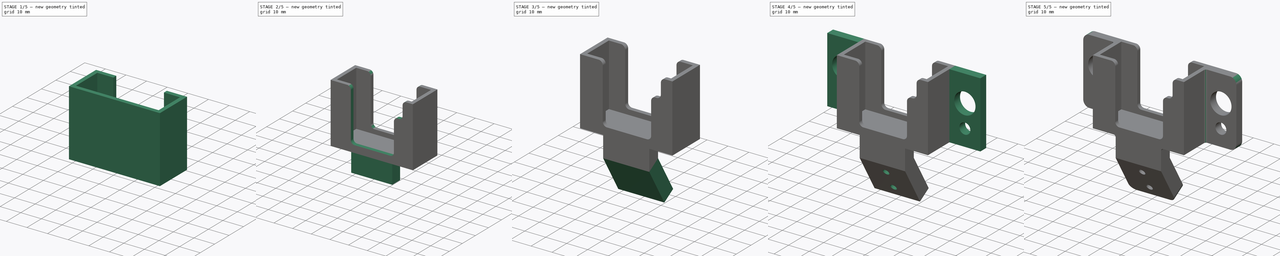
[diagram: build sequence overview — one tinted view per stage of 5, left to right]
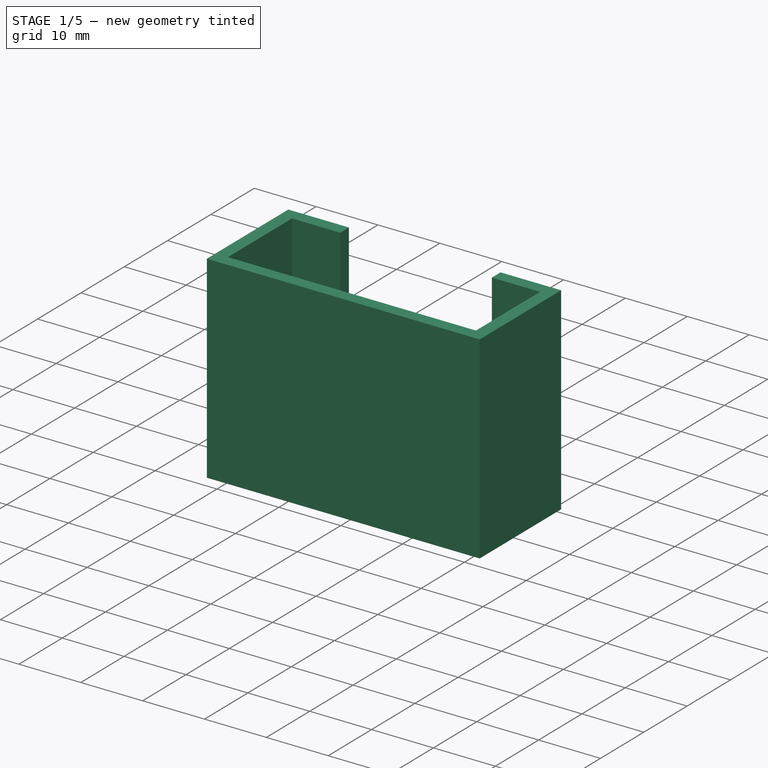
[diagram: stage 1 of 5 — iso view after this stage's code; geometry added in this stage tinted green]
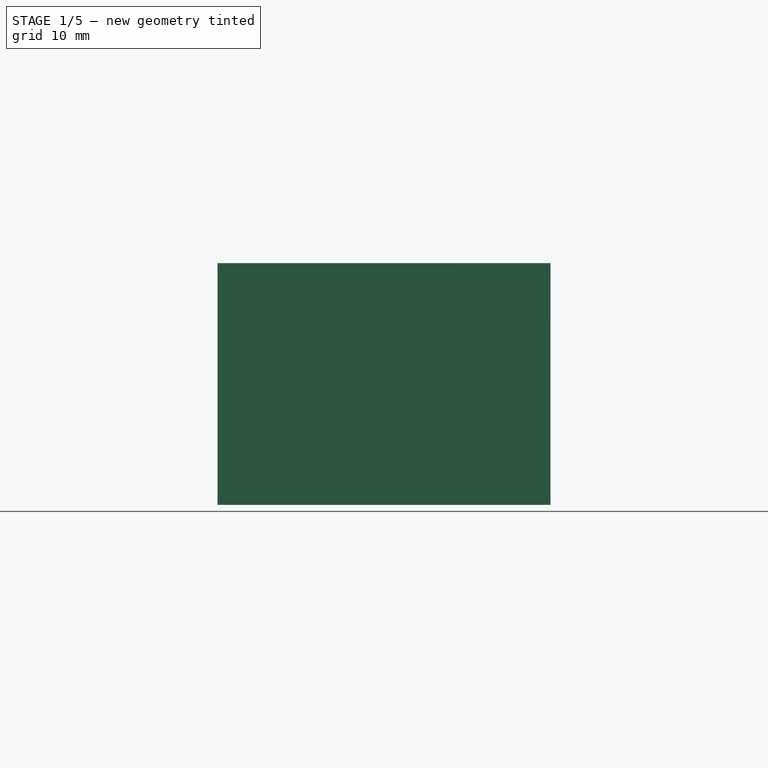
[diagram: stage 1 of 5 — front view after this stage's code; geometry added in this stage tinted green]
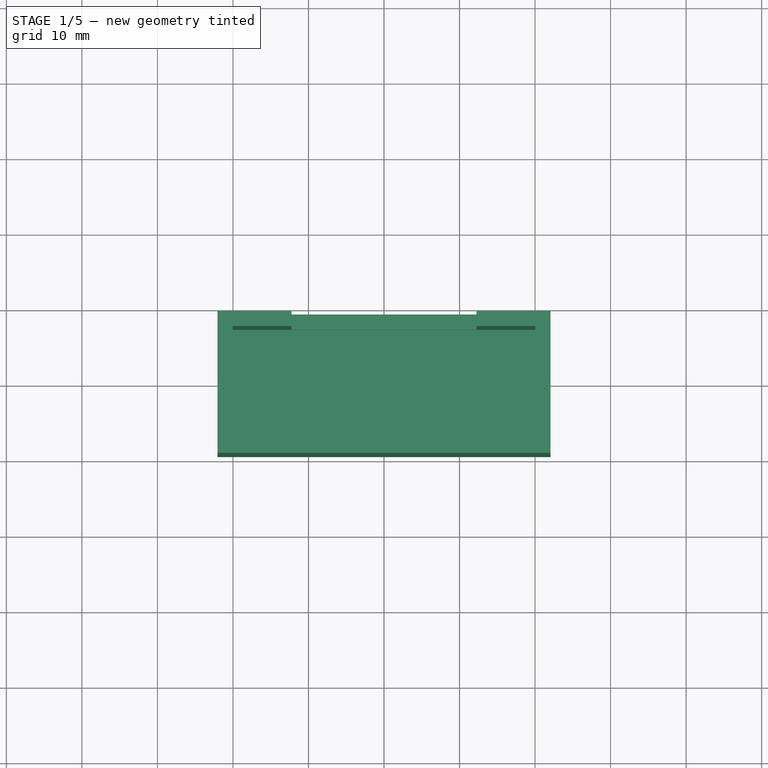
[diagram: stage 1 of 5 — top view after this stage's code; geometry added in this stage tinted green]
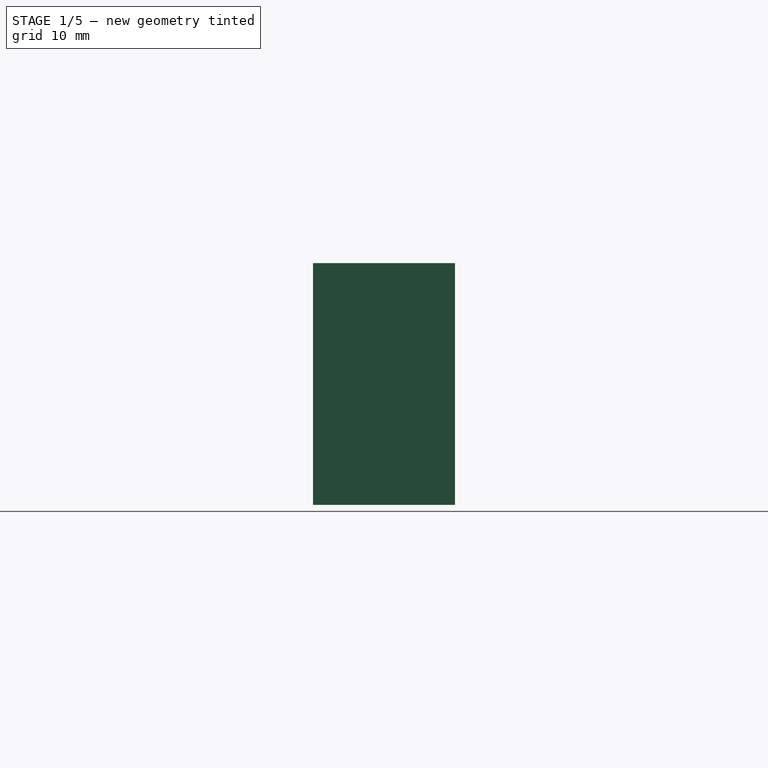
[diagram: stage 1 of 5 — right view after this stage's code; geometry added in this stage tinted green]
FCSTD DOCUMENT  (FreeCAD 0.15R4671 (Git))
Label: Upper Camera Mount
License: All rights reserved
LicenseURL: http://en.wikipedia.org/wiki/All_rights_reserved
objects: Sketcher::SketchObject×13, PartDesign::Pocket×8, PartDesign::Pad×5, PartDesign::Fillet×4
note: 43 computed .brp shape members not serialized (recipe doc carries the construction recipe); baked Part::Feature solids carry a one-line shape summary decoded from their .brp

FEATURE [Sketcher::SketchObject] Sketch
  sketch-geometry (4):
    g0: LineSegment StartX=-22.05 StartY=9.4 StartZ=0 EndX=22.05 EndY=9.4 EndZ=0
    g1: LineSegment StartX=22.05 StartY=9.4 StartZ=0 EndX=22.05 EndY=-9.4 EndZ=0
    g2: LineSegment StartX=22.05 StartY=-9.4 StartZ=0 EndX=-22.05 EndY=-9.4 EndZ=0
    g3: LineSegment StartX=-22.05 StartY=-9.4 StartZ=0 EndX=-22.05 EndY=9.4 EndZ=0
  constraints (12):
    c: Coincident(g0,g1)
    c: Coincident(g1,g2)
    c: Coincident(g2,g3)
    c: Coincident(g3,g0)
    c: Horizontal(g0)
    c: Horizontal(g2)
    c: Vertical(g1)
    c: Vertical(g3)
    c: Distance(g2) = 44.1
    c: Symmetric(g1,g0,g-1)
    c: Symmetric(g2,g1,g-2)
    c: Distance(g1) = 18.8
FEATURE [PartDesign::Pad] Pad
  Length = 32
  Length2 = 100
  Sketch = -> Sketch
  Type = 0
FEATURE [Sketcher::SketchObject] Sketch001
  Placement = pos=(0,0,32) rot=(0,0,1;0rad)
  Support = -> Pad [Face6]
  sketch-geometry (4):
    g0: LineSegment StartX=-20.05 StartY=7.4 StartZ=0 EndX=20.05 EndY=7.4 EndZ=0
    g1: LineSegment StartX=20.05 StartY=7.4 StartZ=0 EndX=20.05 EndY=-7.4 EndZ=0
    g2: LineSegment StartX=20.05 StartY=-7.4 StartZ=0 EndX=-20.05 EndY=-7.4 EndZ=0
    g3: LineSegment StartX=-20.05 StartY=-7.4 StartZ=0 EndX=-20.05 EndY=7.4 EndZ=0
  constraints (12):
    c: Coincident(g0,g1)
    c: Coincident(g1,g2)
    c: Coincident(g2,g3)
    c: Coincident(g3,g0)
    c: Horizontal(g0)
    c: Horizontal(g2)
    c: Vertical(g1)
    c: Vertical(g3)
    c: Symmetric(g2,g0,g-1)
    c: Distance(g0) = 40.1
    c: Symmetric(g0,g0,g-2)
    c: Distance(g1) = 14.8
FEATURE [PartDesign::Pocket] Pocket
  Length = 29.6
  Sketch = -> Sketch001
  Type = 0
FEATURE [Sketcher::SketchObject] Sketch002
  ExternalGeometry = -> [Pocket]
  Placement = pos=(0,0,32) rot=(0,0,1;0rad)
  Support = -> Pocket [Face5]
  sketch-geometry (4):
    g0: LineSegment StartX=-12.25 StartY=9.4 StartZ=0 EndX=12.25 EndY=9.4 EndZ=0
    g1: LineSegment StartX=12.25 StartY=9.4 StartZ=0 EndX=12.25 EndY=7.4 EndZ=0
    g2: LineSegment StartX=12.25 StartY=7.4 StartZ=0 EndX=-12.25 EndY=7.4 EndZ=0
    g3: LineSegment StartX=-12.25 StartY=7.4 StartZ=0 EndX=-12.25 EndY=9.4 EndZ=0
  constraints (12):
    c: Coincident(g0,g1)
    c: Coincident(g1,g2)
    c: Coincident(g2,g3)
    c: Coincident(g3,g0)
    c: Horizontal(g0)
    c: Horizontal(g2)
    c: Vertical(g1)
    c: Vertical(g3)
    c: PointOnObject(g0,g-3)
    c: PointOnObject(g1,g-4)
    c: Symmetric(g2,g1,g-2)
    c: Distance(g2) = 24.5
FEATURE [PartDesign::Pocket] Pocket001
  Length = 27.2
  Sketch = -> Sketch002
  Type = 0
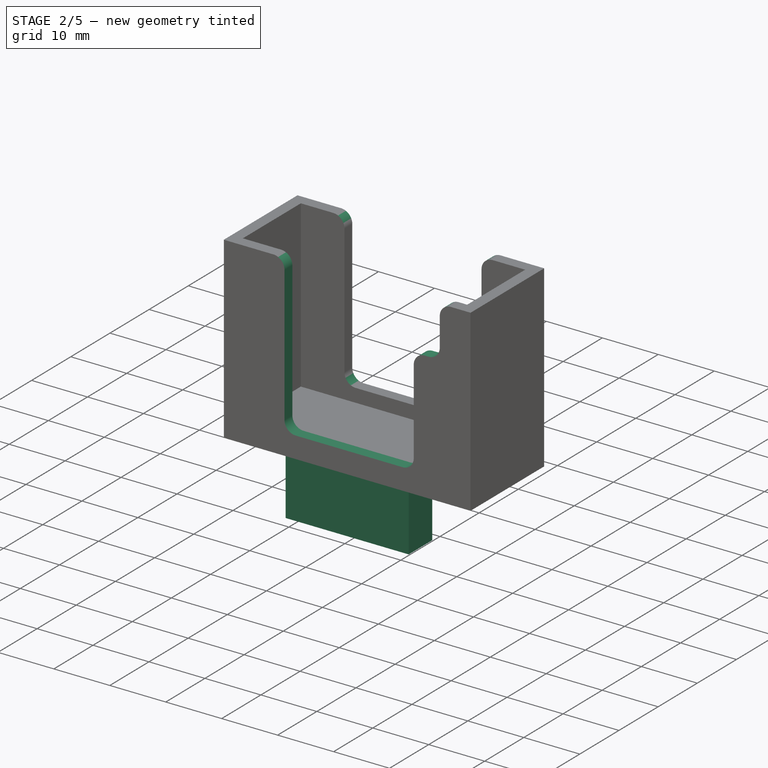
[diagram: stage 2 of 5 — iso view after this stage's code; geometry added in this stage tinted green]
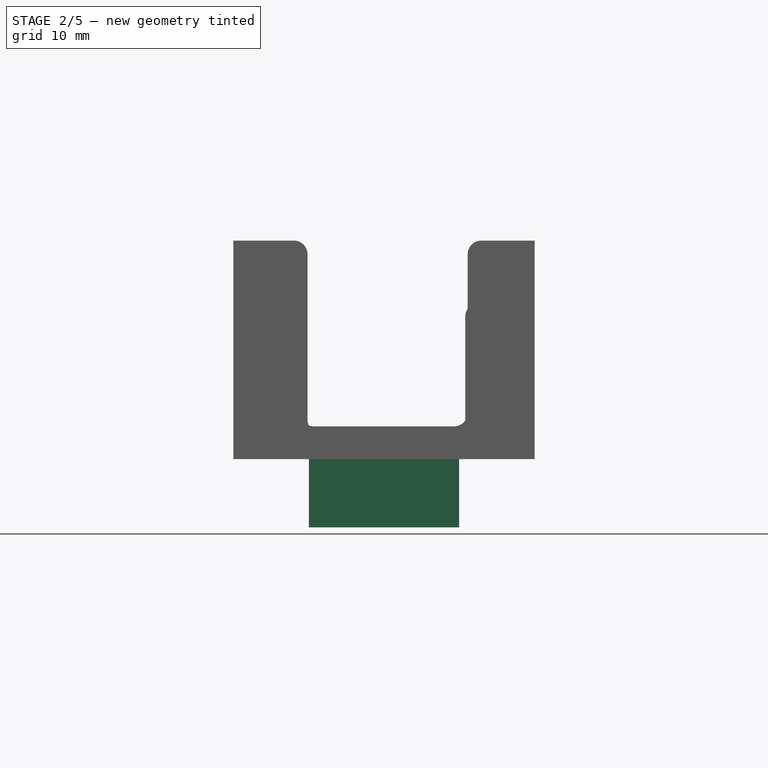
[diagram: stage 2 of 5 — front view after this stage's code; geometry added in this stage tinted green]
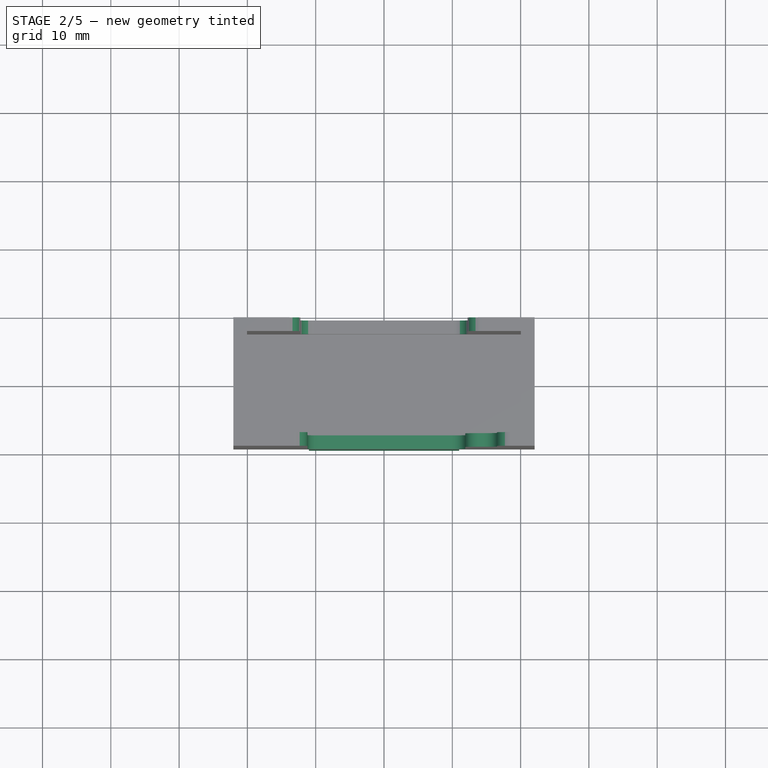
[diagram: stage 2 of 5 — top view after this stage's code; geometry added in this stage tinted green]
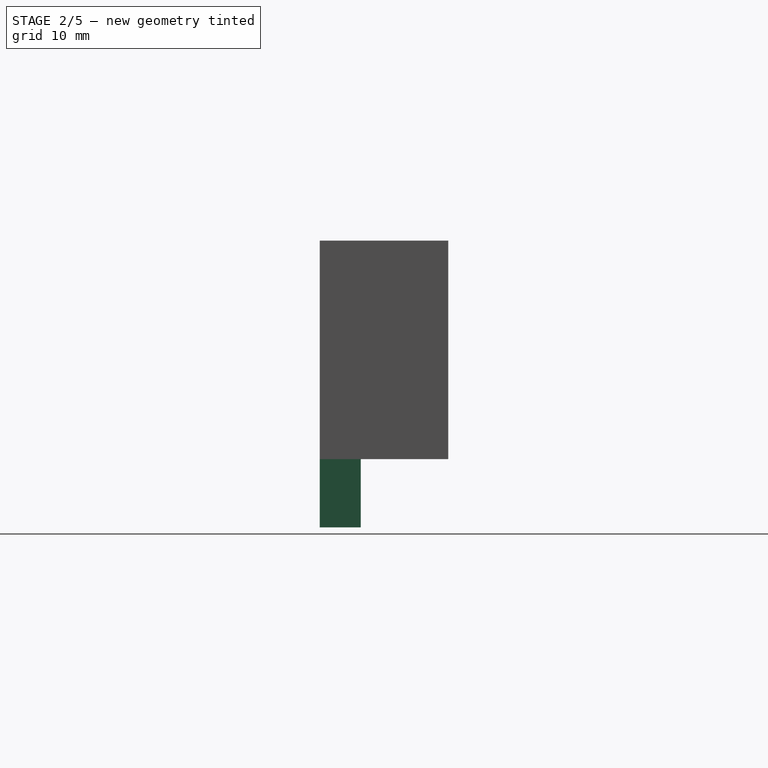
[diagram: stage 2 of 5 — right view after this stage's code; geometry added in this stage tinted green]
FEATURE [Sketcher::SketchObject] Sketch003
  ExternalGeometry = -> [Pocket001]
  Placement = pos=(0,0,32) rot=(0,0,1;0rad)
  Support = -> Pocket001 [Face4]
  sketch-geometry (4):
    g0: LineSegment StartX=-11.2001 StartY=-7.4 StartZ=0 EndX=11.8999 EndY=-7.4 EndZ=0
    g1: LineSegment StartX=11.8999 StartY=-7.4 StartZ=0 EndX=11.8999 EndY=-9.4 EndZ=0
    g2: LineSegment StartX=11.8999 StartY=-9.4 StartZ=0 EndX=-11.2001 EndY=-9.4 EndZ=0
    g3: LineSegment StartX=-11.2001 StartY=-9.4 StartZ=0 EndX=-11.2001 EndY=-7.4 EndZ=0
  constraints (11):
    c: Coincident(g0,g1)
    c: Coincident(g1,g2)
    c: Coincident(g2,g3)
    c: Coincident(g3,g0)
    c: Horizontal(g0)
    c: Horizontal(g2)
    c: Vertical(g1)
    c: Vertical(g3)
    c: PointOnObject(g0,g-3)
    c: PointOnObject(g1,g-4)
    c: Distance(g2) = 23.1
FEATURE [PartDesign::Pocket] Pocket002
  Length = 28.2
  Sketch = -> Sketch003
  Type = 0
FEATURE [Sketcher::SketchObject] Sketch004
  ExternalGeometry = -> [Pocket002]
  Placement = pos=(0,0,32) rot=(0,0,1;0rad)
  Support = -> Pocket002 [Face4]
  sketch-geometry (4):
    g0: LineSegment StartX=11.8999 StartY=-7.4 StartZ=0 EndX=16.55 EndY=-7.4 EndZ=0
    g1: LineSegment StartX=16.55 StartY=-7.4 StartZ=0 EndX=16.55 EndY=-9.4 EndZ=0
    g2: LineSegment StartX=16.55 StartY=-9.4 StartZ=0 EndX=11.8999 EndY=-9.4 EndZ=0
    g3: LineSegment StartX=11.8999 StartY=-9.4 StartZ=0 EndX=11.8999 EndY=-7.4 EndZ=0
  constraints (11):
    c: Coincident(g0,g1)
    c: Coincident(g1,g2)
    c: Coincident(g2,g3)
    c: Coincident(g3,g0)
    c: Horizontal(g0)
    c: Horizontal(g2)
    c: Vertical(g1)
    c: Vertical(g3)
    c: Coincident(g0,g-3)
    c: PointOnObject(g1,g-4)
    c: Distance(g0,g-3) = 3.5
FEATURE [PartDesign::Pocket] Pocket003
  Length = 9.1
  Sketch = -> Sketch004
  Type = 0
FEATURE [PartDesign::Fillet] Fillet
  Base = -> Pocket003 [Edge53,Edge20,Edge39,Edge54,Edge18,Edge25,Edge29,Edge14,Edge22,Edge52]
  Radius = 2
FEATURE [Sketcher::SketchObject] Sketch005
  ExternalGeometry = -> [Fillet]
  Placement = pos=(0,0,0) rot=(1,0,0;3.14159rad)
  Support = -> Fillet [Face6]
  sketch-geometry (4):
    g0: LineSegment StartX=-11 StartY=9.4 StartZ=0 EndX=11 EndY=9.4 EndZ=0
    g1: LineSegment StartX=11 StartY=9.4 StartZ=0 EndX=11 EndY=3.4 EndZ=0
    g2: LineSegment StartX=11 StartY=3.4 StartZ=0 EndX=-11 EndY=3.4 EndZ=0
    g3: LineSegment StartX=-11 StartY=3.4 StartZ=0 EndX=-11 EndY=9.4 EndZ=0
  constraints (12):
    c: Coincident(g0,g1)
    c: Coincident(g1,g2)
    c: Coincident(g2,g3)
    c: Coincident(g3,g0)
    c: Horizontal(g0)
    c: Horizontal(g2)
    c: Vertical(g1)
    c: Vertical(g3)
    c: PointOnObject(g0,g-3)
    c: Symmetric(g1,g2,g-2)
    c: Distance(g1) = 6
    c: Distance(g2) = 22
FEATURE [PartDesign::Pad] Pad001
  Length = 10
  Length2 = 100
  Sketch = -> Sketch005
  Type = 0
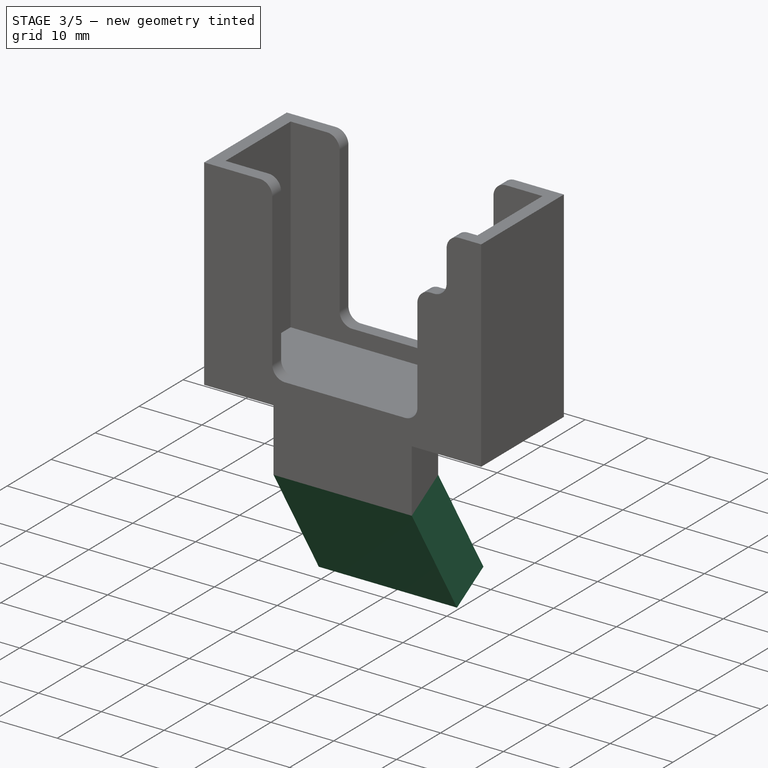
[diagram: stage 3 of 5 — iso view after this stage's code; geometry added in this stage tinted green]
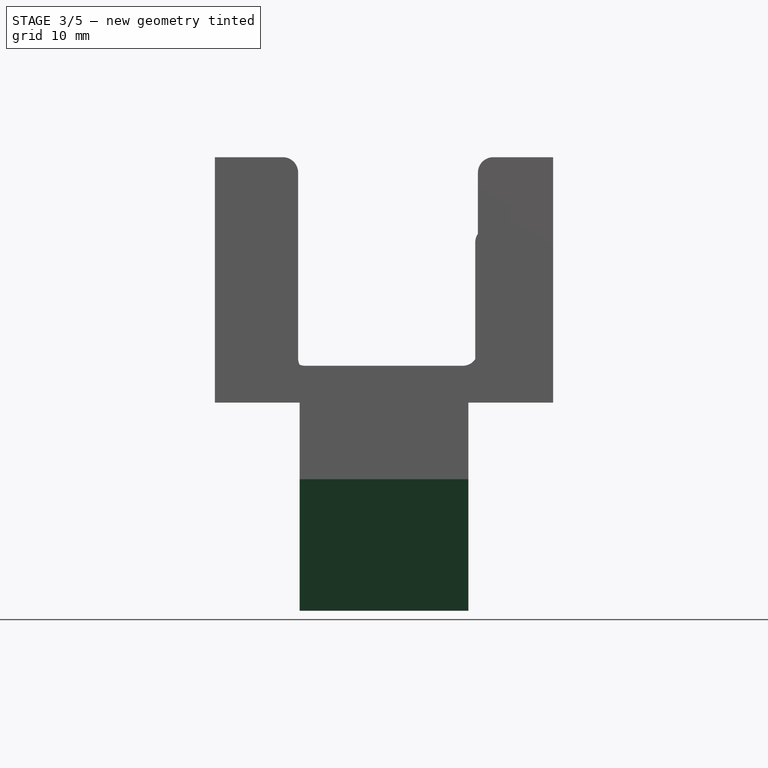
[diagram: stage 3 of 5 — front view after this stage's code; geometry added in this stage tinted green]
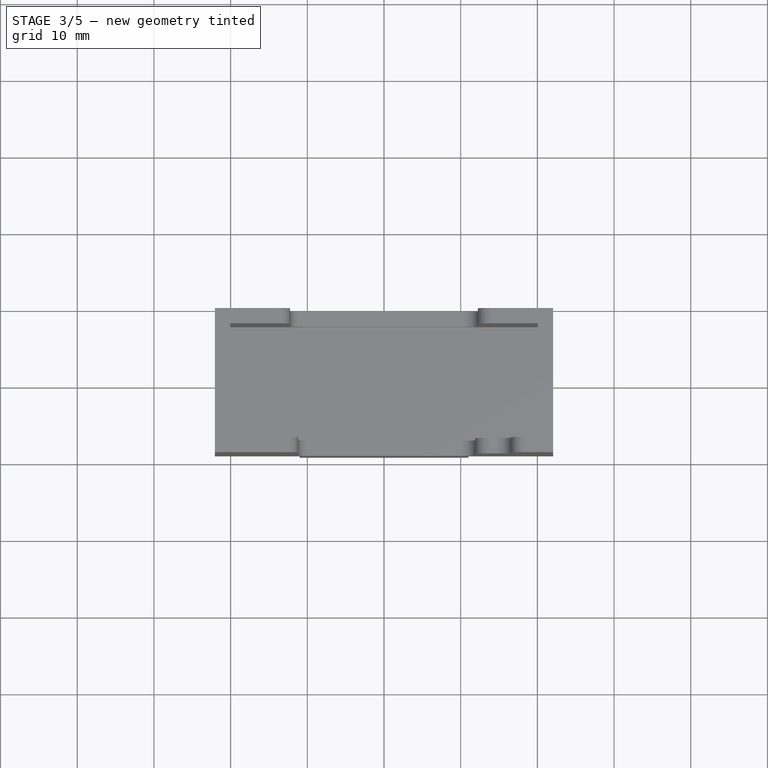
[diagram: stage 3 of 5 — top view after this stage's code; geometry added in this stage tinted green]
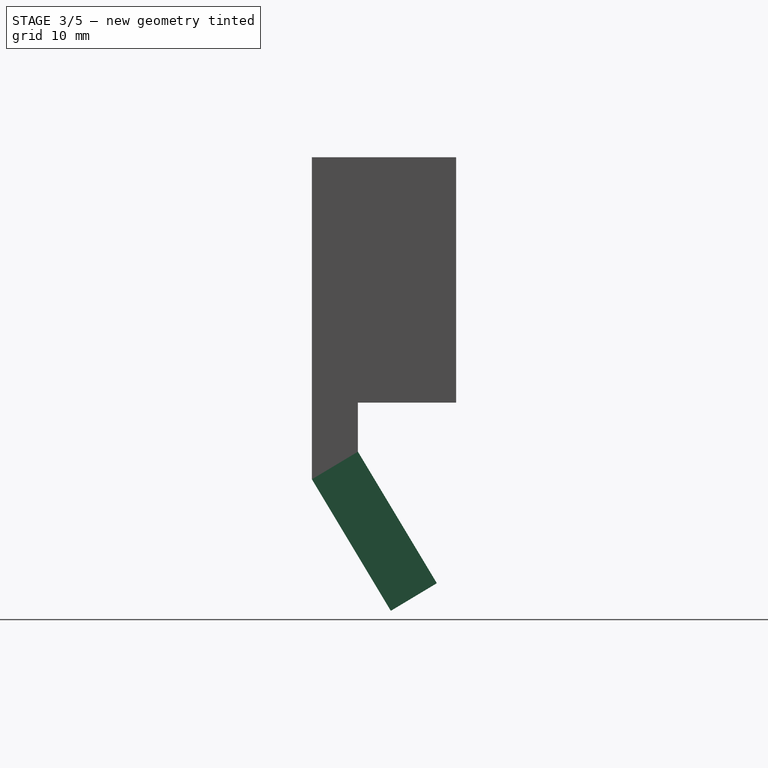
[diagram: stage 3 of 5 — right view after this stage's code; geometry added in this stage tinted green]
FEATURE [Sketcher::SketchObject] Sketch006
  ExternalGeometry = -> [Pad001]
  Placement = pos=(-11,0,0) rot=(0.57735,-0.57735,-0.57735;2.0944rad)
  Support = -> Pad001 [Face5]
  sketch-geometry (6):
    g0: LineSegment StartX=9.4 StartY=-10 StartZ=0 EndX=3.4 EndY=-6.4 EndZ=0
    g1: LineSegment StartX=3.4 StartY=-6.4 StartZ=0 EndX=3.4 EndY=-10 EndZ=0
    g2: LineSegment StartX=3.4 StartY=-10 StartZ=0 EndX=9.4 EndY=-10 EndZ=0
    g3: LineSegment [constr] StartX=9.4 StartY=-10 StartZ=0 EndX=-0.6 EndY=-4 EndZ=0
    g4: LineSegment [constr] StartX=9.4 StartY=-10 StartZ=0 EndX=-0.6 EndY=-10 EndZ=0
    g5: LineSegment [constr] StartX=-0.6 StartY=-4 StartZ=0 EndX=-0.6 EndY=-10 EndZ=0
  constraints (15):
    c: Coincident(g-4,g0)
    c: PointOnObject(g0,g-5)
    c: Coincident(g0,g1)
    c: Coincident(g1,g-5)
    c: Coincident(g1,g2)
    c: Coincident(g2,g0)
    c: Coincident(g3,g0)
    c: PointOnObject(g0,g3)
    c: Coincident(g4,g0)
    c: Horizontal(g4)
    c: Coincident(g5,g3)
    c: Coincident(g5,g4)
    c: Vertical(g5)
    c: Distance(g4) = 10
    c: Distance(g5) = 6
FEATURE [PartDesign::Pocket] Pocket004
  Length = 5
  Sketch = -> Sketch006
  Type = 1
FEATURE [Sketcher::SketchObject] Sketch007
  ExternalGeometry = -> [Pocket004]
  Placement = pos=(0,1.92353,-3.20588) rot=(1,0,0;3.68201rad)
  Support = -> Pocket004 [Face4]
  sketch-geometry (4):
    g0: LineSegment StartX=-11 StartY=13.2054 StartZ=0 EndX=11 EndY=13.2054 EndZ=0
    g1: LineSegment StartX=11 StartY=13.2054 StartZ=0 EndX=11 EndY=6.20825 EndZ=0
    g2: LineSegment StartX=11 StartY=6.20825 StartZ=0 EndX=-11 EndY=6.20825 EndZ=0
    g3: LineSegment StartX=-11 StartY=6.20825 StartZ=0 EndX=-11 EndY=13.2054 EndZ=0
  constraints (10):
    c: Coincident(g0,g1)
    c: Coincident(g1,g2)
    c: Coincident(g2,g3)
    c: Coincident(g3,g0)
    c: Horizontal(g0)
    c: Horizontal(g2)
    c: Vertical(g1)
    c: Vertical(g3)
    c: Coincident(g0,g-4)
    c: Coincident(g1,g-3)
FEATURE [PartDesign::Pad] Pad002
  Length = 20
  Length2 = 100
  Sketch = -> Sketch007
  Type = 0
FEATURE [Sketcher::SketchObject] Sketch008
  ExternalGeometry = -> [Pad002]
  Placement = pos=(0,-5.32353,-3.19412) rot=(0,0.492699,0.8702;3.14159rad)
  Support = -> Pad002 [Face37]
  sketch-geometry (2):
    g0: Circle CenterX=0 CenterY=-8.73867 CenterZ=0 NormalX=0 NormalY=0 NormalZ=1 Radius=3
    g1: Circle CenterX=0 CenterY=-18.7387 CenterZ=0 NormalX=0 NormalY=0 NormalZ=1 Radius=3
  constraints (6):
    c: PointOnObject(g0,g-2)
    c: PointOnObject(g1,g-2)
    c: Equal(g0,g1)
    c: Radius(g0) = 3
    c: DistanceY(g-3,g1) = 5
    c: DistanceY(g0,g-4) = 5
FEATURE [PartDesign::Pocket] Pocket005
  Length = 5
  Sketch = -> Sketch008
  Type = 0
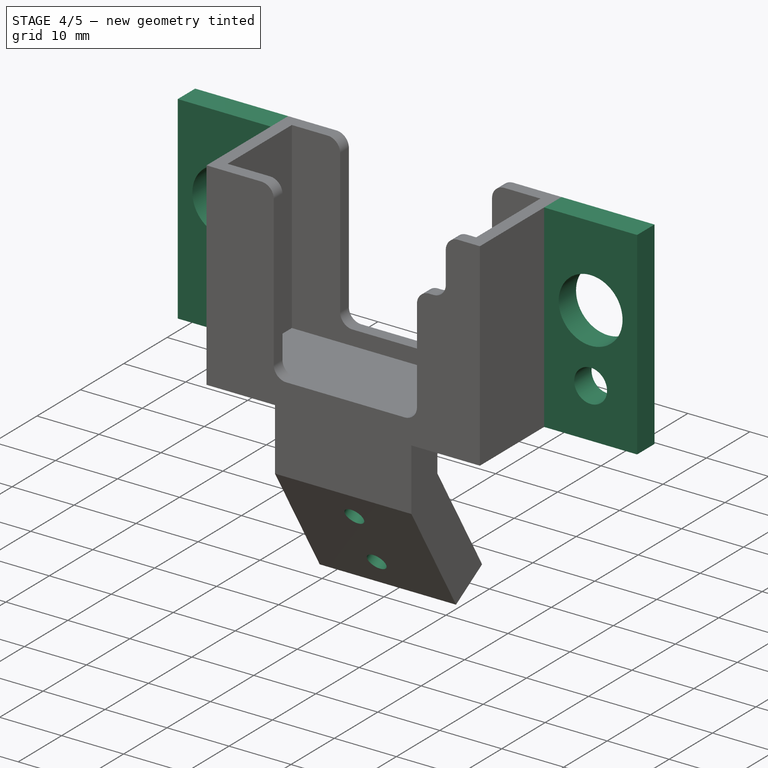
[diagram: stage 4 of 5 — iso view after this stage's code; geometry added in this stage tinted green]
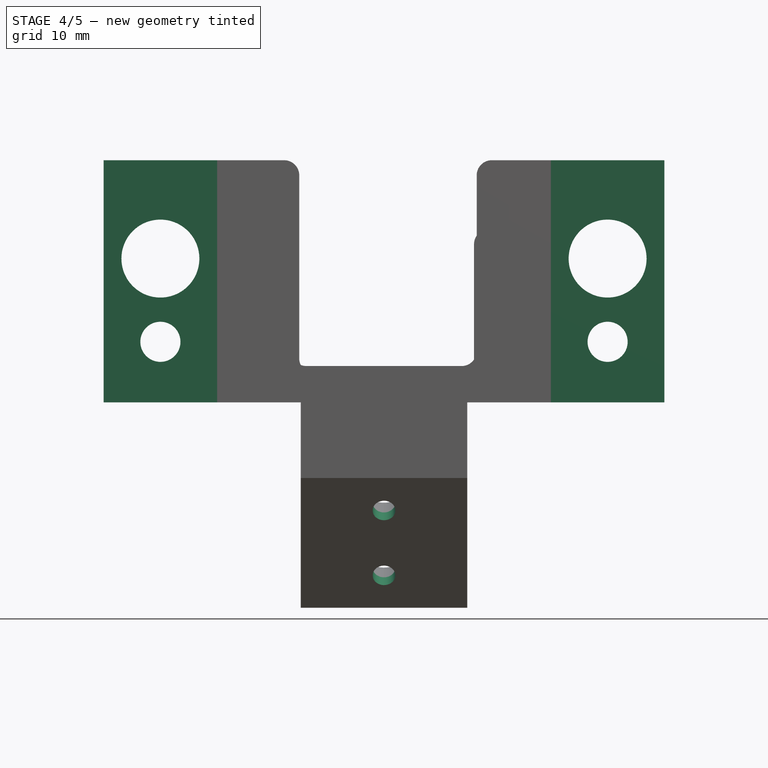
[diagram: stage 4 of 5 — front view after this stage's code; geometry added in this stage tinted green]
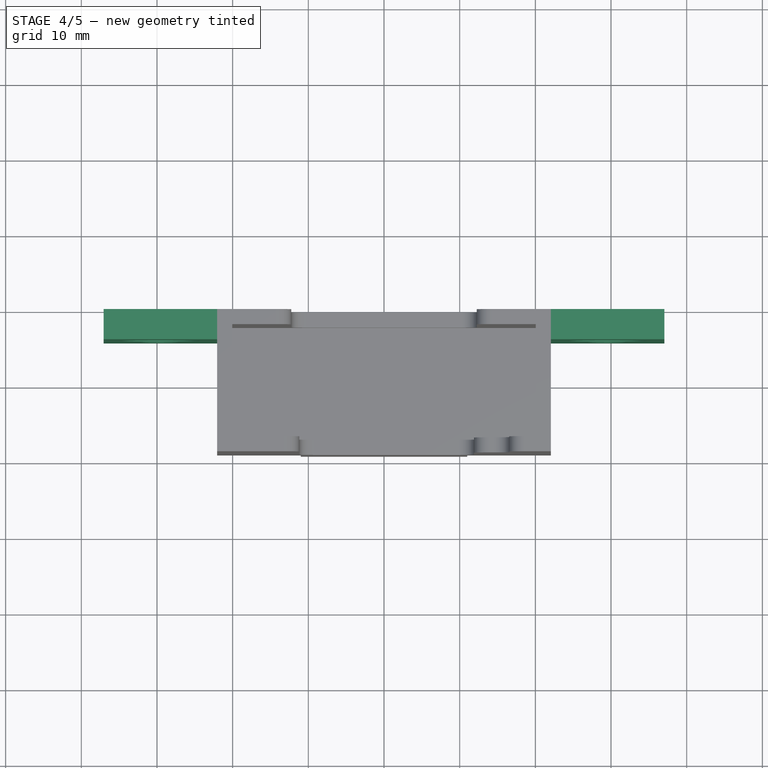
[diagram: stage 4 of 5 — top view after this stage's code; geometry added in this stage tinted green]
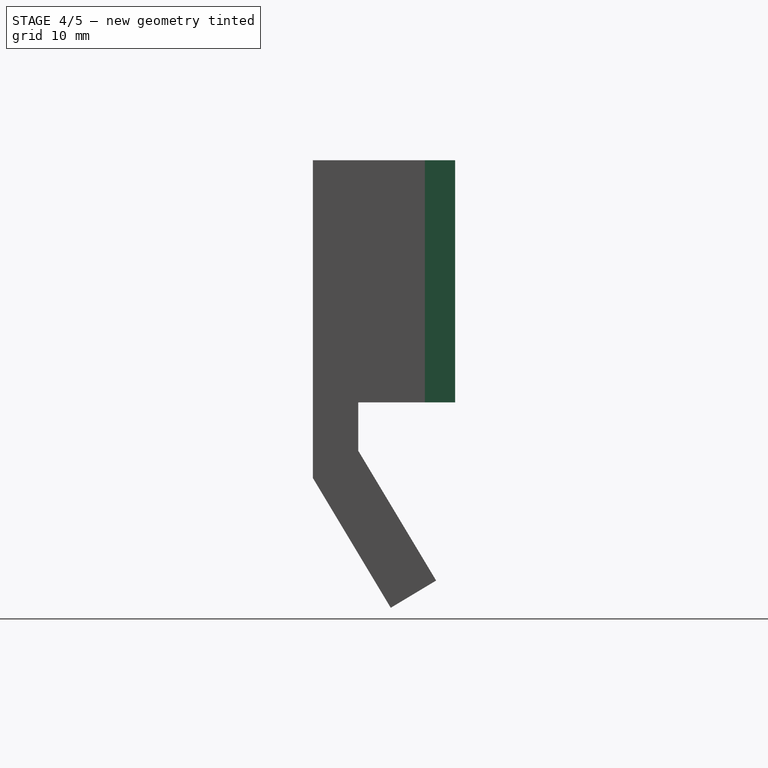
[diagram: stage 4 of 5 — right view after this stage's code; geometry added in this stage tinted green]
FEATURE [Sketcher::SketchObject] Sketch009
  ExternalGeometry = -> [Pocket005]
  Placement = pos=(0,-9.61099,-5.7666) rot=(0,0.492699,0.8702;3.14159rad)
  Support = -> Pocket005 [Face43]
  sketch-geometry (2):
    g0: Circle CenterX=0 CenterY=-18.7387 CenterZ=0 NormalX=0 NormalY=0 NormalZ=1 Radius=1.5
    g1: Circle CenterX=0 CenterY=-8.73867 CenterZ=0 NormalX=0 NormalY=0 NormalZ=1 Radius=1.5
  constraints (4):
    c: Coincident(g0,g-3)
    c: Coincident(g1,g-4)
    c: Equal(g1,g0)
    c: Radius(g0) = 1.5
FEATURE [PartDesign::Pocket] Pocket006
  Length = 5
  Sketch = -> Sketch009
  Type = 1
FEATURE [Sketcher::SketchObject] Sketch010
  ExternalGeometry = -> [Pocket006]
  Placement = pos=(-22.05,0,0) rot=(0.57735,-0.57735,-0.57735;2.0944rad)
  Support = -> Pocket006 [Face4]
  sketch-geometry (4):
    g0: LineSegment StartX=-9.4 StartY=32 StartZ=0 EndX=-5.4 EndY=32 EndZ=0
    g1: LineSegment StartX=-5.4 StartY=32 StartZ=0 EndX=-5.4 EndY=0 EndZ=0
    g2: LineSegment StartX=-5.4 StartY=0 StartZ=0 EndX=-9.4 EndY=0 EndZ=0
    g3: LineSegment StartX=-9.4 StartY=0 StartZ=0 EndX=-9.4 EndY=32 EndZ=0
  constraints (11):
    c: Coincident(g0,g1)
    c: Coincident(g1,g2)
    c: Coincident(g2,g3)
    c: Coincident(g3,g0)
    c: Horizontal(g0)
    c: Horizontal(g2)
    c: Vertical(g1)
    c: Vertical(g3)
    c: Coincident(g0,g-4)
    c: PointOnObject(g1,g-5)
    c: Distance(g2) = 4
FEATURE [PartDesign::Pad] Pad003
  Length = 15
  Length2 = 100
  Sketch = -> Sketch010
  Type = 0
FEATURE [Sketcher::SketchObject] Sketch011
  ExternalGeometry = -> [Pad003]
  Placement = pos=(22.05,0,0) rot=(0.57735,0.57735,0.57735;2.0944rad)
  Support = -> Pad003 [Face11]
  sketch-geometry (4):
    g0: LineSegment StartX=9.4 StartY=32 StartZ=0 EndX=5.4 EndY=32 EndZ=0
    g1: LineSegment StartX=5.4 StartY=32 StartZ=0 EndX=5.4 EndY=0 EndZ=0
    g2: LineSegment StartX=5.4 StartY=0 StartZ=0 EndX=9.4 EndY=0 EndZ=0
    g3: LineSegment StartX=9.4 StartY=0 StartZ=0 EndX=9.4 EndY=32 EndZ=0
  constraints (12):
    c: Coincident(g0,g1)
    c: Coincident(g1,g2)
    c: Coincident(g2,g3)
    c: Coincident(g3,g0)
    c: Horizontal(g0)
    c: Horizontal(g2)
    c: Vertical(g1)
    c: Vertical(g3)
    c: Coincident(g0,g-4)
    c: Coincident(g2,g-5)
    c: Coincident(g2,g-3)
    c: Distance(g2) = 4
FEATURE [PartDesign::Pad] Pad004
  Length = 15
  Length2 = 100
  Sketch = -> Sketch011
  Type = 0
FEATURE [Sketcher::SketchObject] Sketch012
  ExternalGeometry = -> [Pad004]
  Placement = pos=(0,9.4,0) rot=(0,0.707107,0.707107;3.14159rad)
  Support = -> Pad004 [Face36]
  sketch-geometry (4):
    g0: Circle CenterX=-29.55 CenterY=8 CenterZ=0 NormalX=0 NormalY=0 NormalZ=1 Radius=2.65
    g1: Circle CenterX=-29.55 CenterY=19 CenterZ=0 NormalX=0 NormalY=0 NormalZ=1 Radius=5.15
    g2: Circle CenterX=29.55 CenterY=8 CenterZ=0 NormalX=0 NormalY=0 NormalZ=1 Radius=2.65
    g3: Circle CenterX=29.55 CenterY=19 CenterZ=0 NormalX=0 NormalY=0 NormalZ=1 Radius=5.15
  constraints (10):
    c: Symmetric(g3,g1,g-2)
    c: Symmetric(g0,g2,g-2)
    c: Equal(g0,g2)
    c: Equal(g1,g3)
    c: Radius(g3) = 5.15
    c: Radius(g2) = 2.65
    c: DistanceX(g3,g-5) = -7.5
    c: DistanceY(g3,g-5) = -19
    c: DistanceX(g0,g-4) = 7.5
    c: DistanceY(g0,g-4) = -8
FEATURE [PartDesign::Pocket] Pocket007
  Length = 9
  Sketch = -> Sketch012
  Type = 1
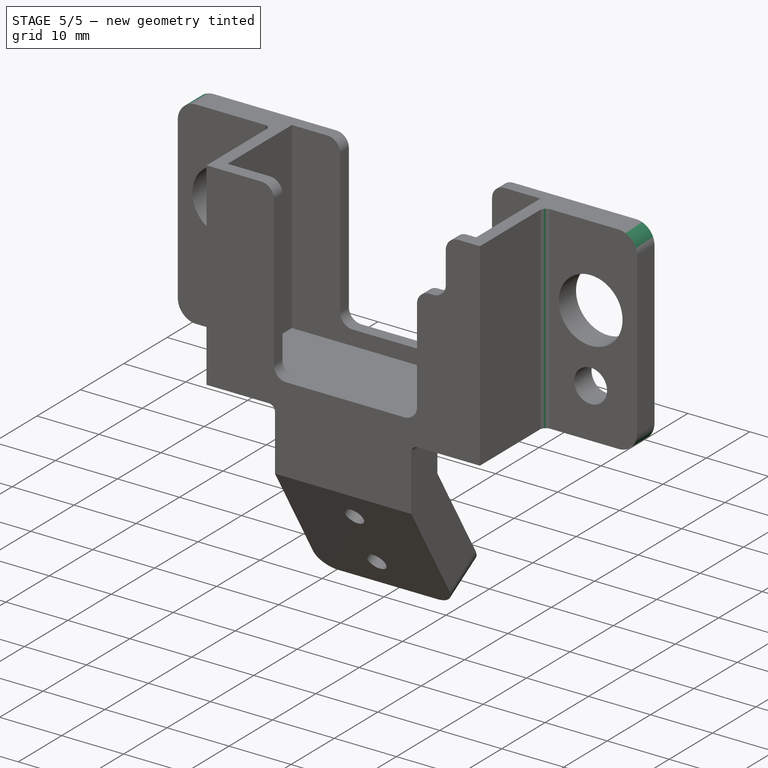
[diagram: stage 5 of 5 — iso view after this stage's code; geometry added in this stage tinted green]
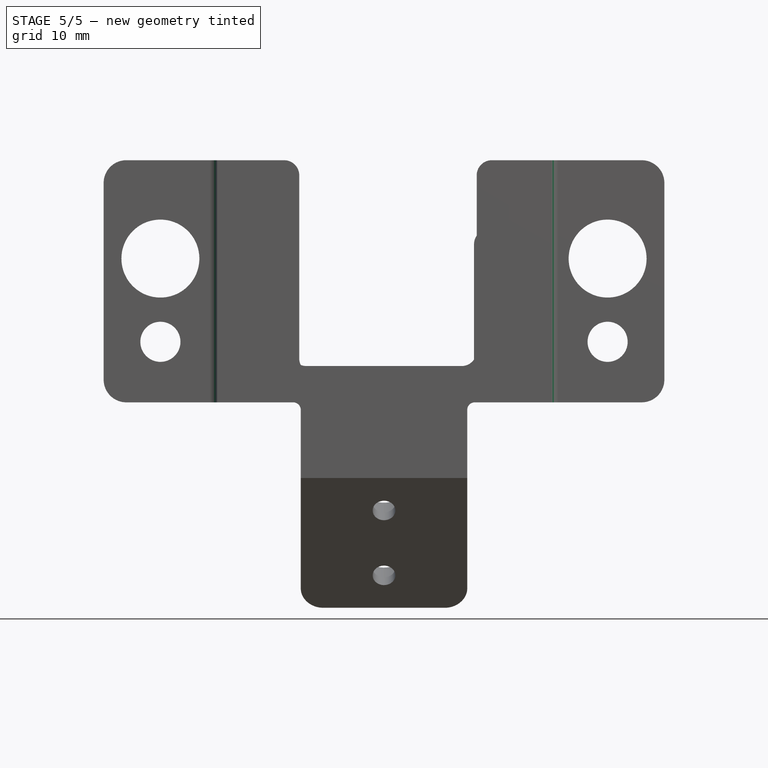
[diagram: stage 5 of 5 — front view after this stage's code; geometry added in this stage tinted green]
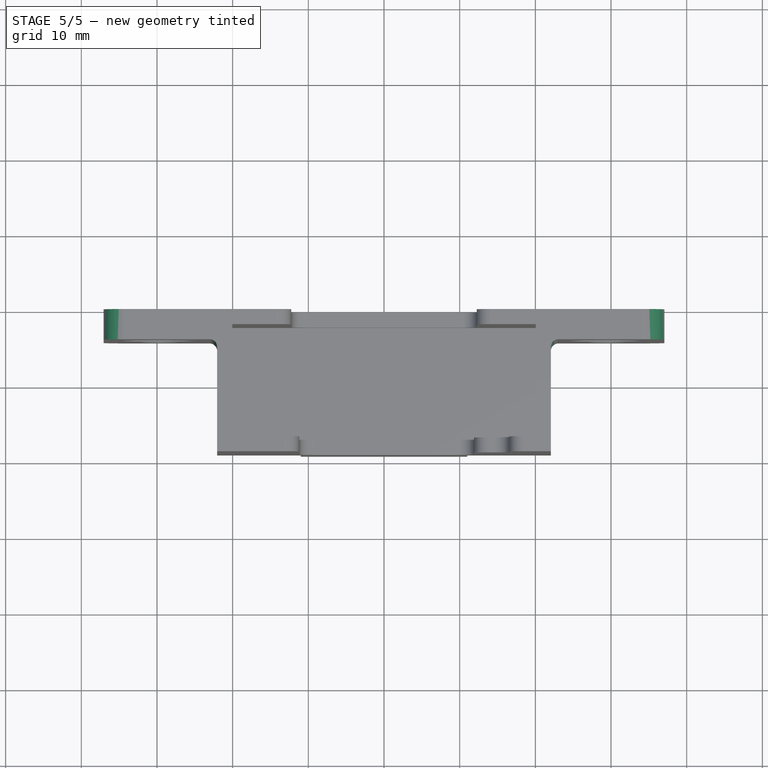
[diagram: stage 5 of 5 — top view after this stage's code; geometry added in this stage tinted green]
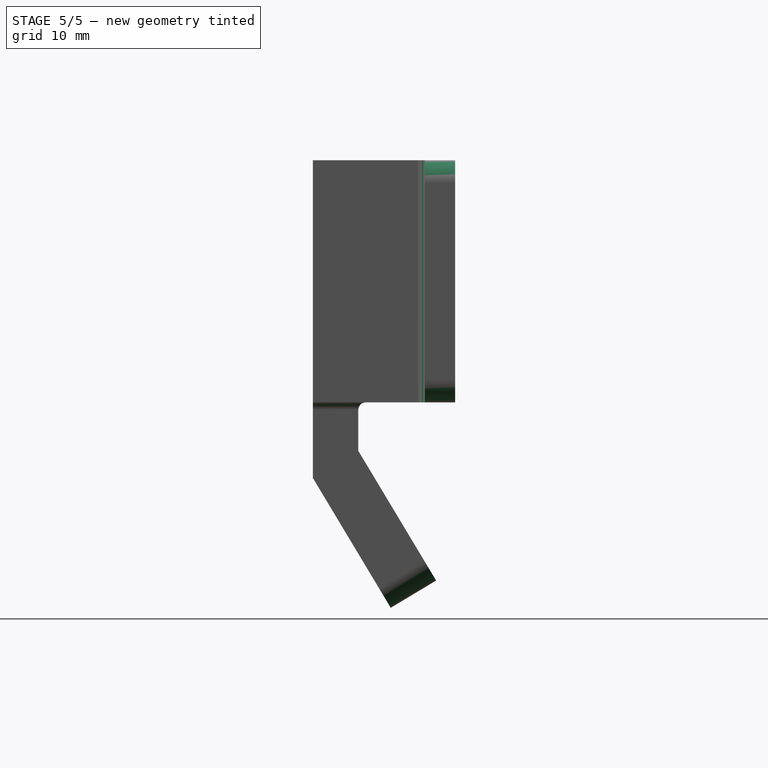
[diagram: stage 5 of 5 — right view after this stage's code; geometry added in this stage tinted green]
FEATURE [PartDesign::Fillet] Fillet001
  Base = -> Pocket007 [Edge122,Edge79,Edge100,Edge103,Edge137,Edge136]
  Radius = 3
FEATURE [PartDesign::Fillet] Fillet002
  Base = -> Fillet001 [Edge94,Edge92,Edge93]
  Radius = 1
FEATURE [PartDesign::Fillet] Fillet003
  Base = -> Fillet002 [Edge48,Edge34]
  Radius = 1
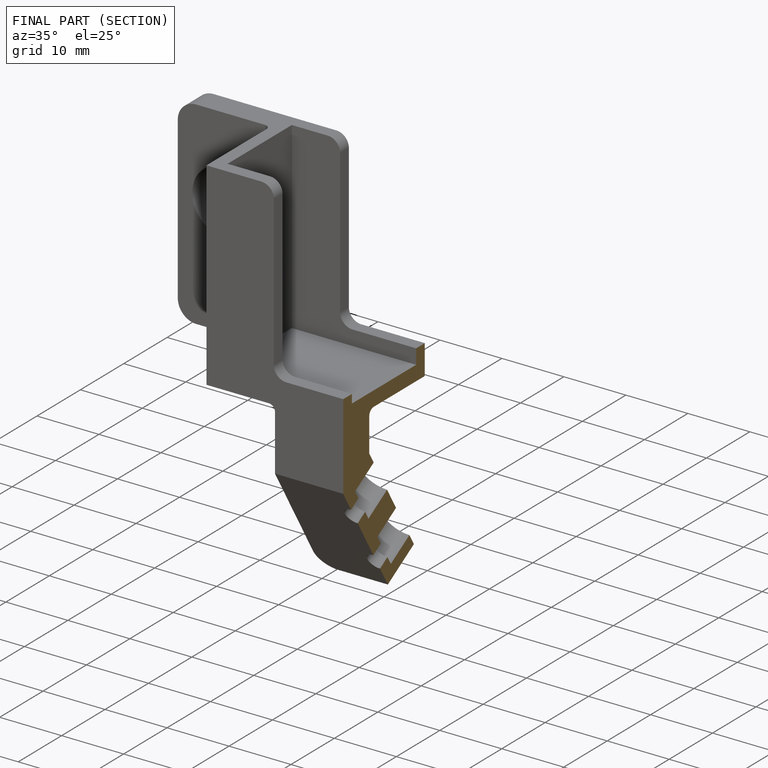
[diagram: finished part — half-section view (interior)]
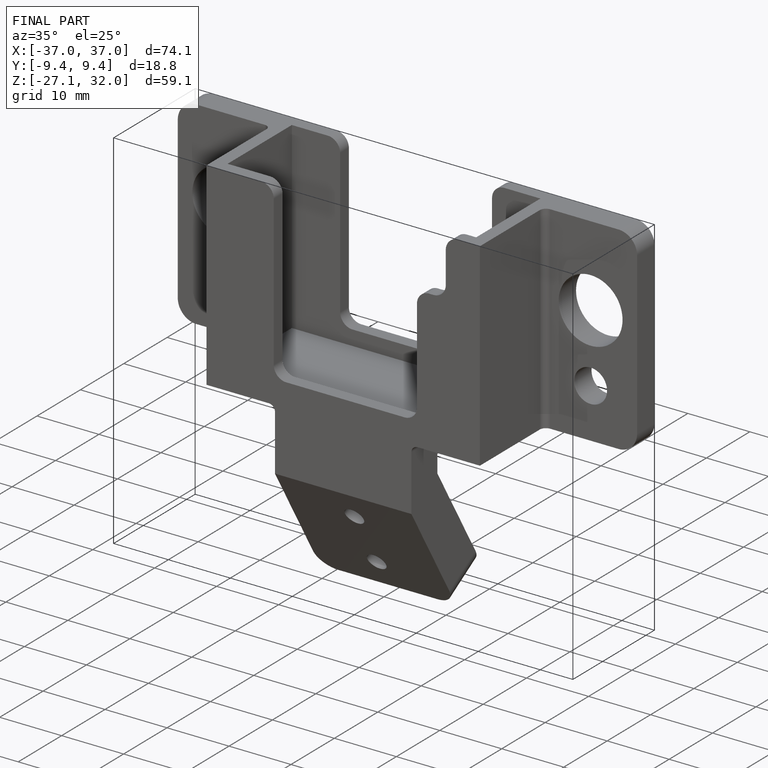
[diagram: finished part — iso view with bounding-box wireframe]
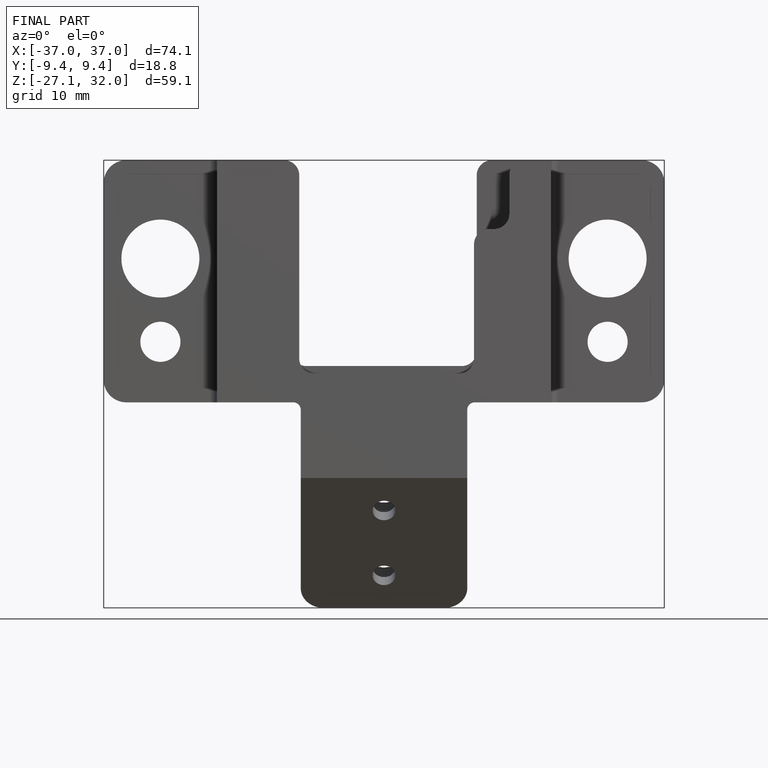
[diagram: finished part — front view with bounding-box wireframe]
